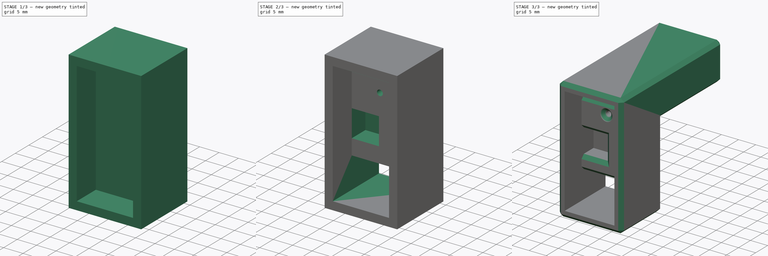
[diagram: build sequence overview — one tinted view per stage of 3, left to right]
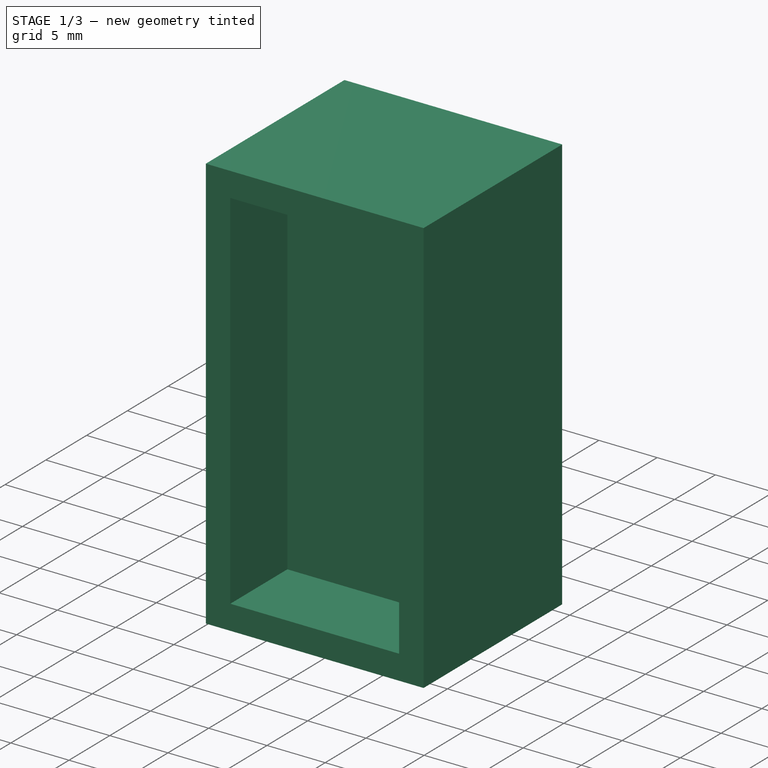
[diagram: stage 1 of 3 — iso view after this stage's code; geometry added in this stage tinted green]
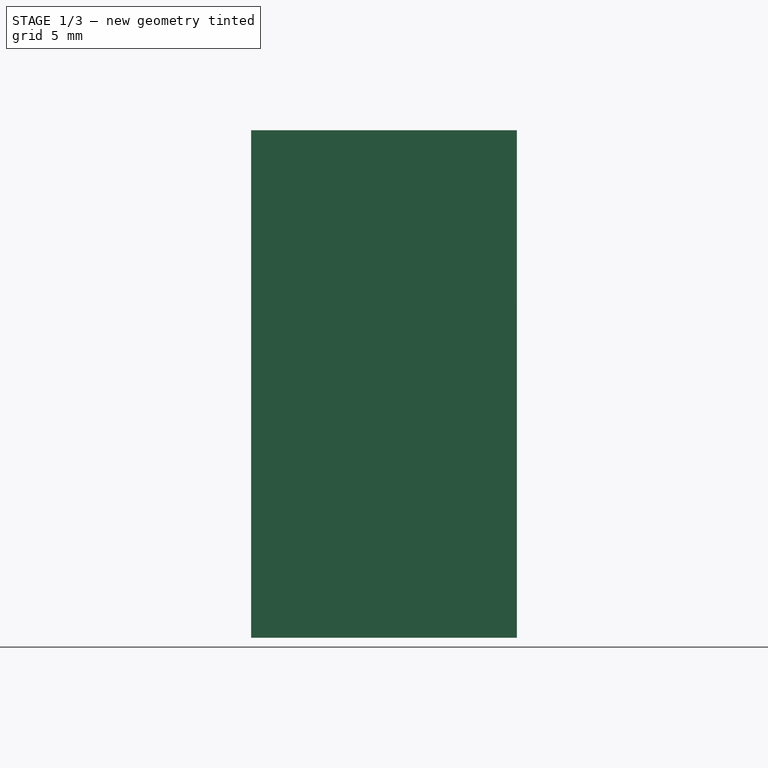
[diagram: stage 1 of 3 — front view after this stage's code; geometry added in this stage tinted green]
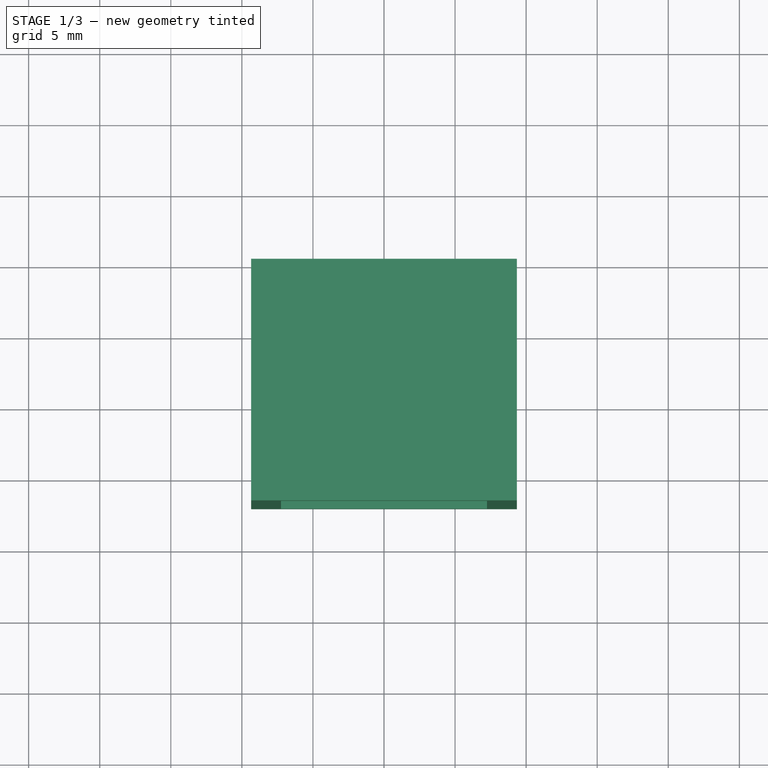
[diagram: stage 1 of 3 — top view after this stage's code; geometry added in this stage tinted green]
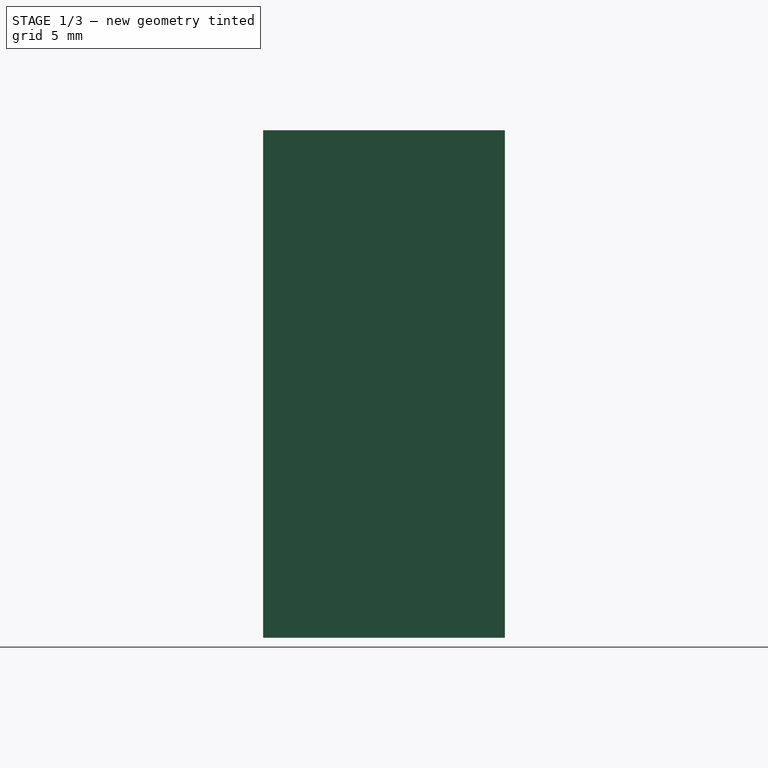
[diagram: stage 1 of 3 — right view after this stage's code; geometry added in this stage tinted green]
FCSTD DOCUMENT  (FreeCAD 0.20R24436 (Git))
Label: EMH_eHZ_readhead
License: All rights reserved
LicenseURL: http://en.wikipedia.org/wiki/All_rights_reserved
objects: Sketcher::SketchObject×5, PartDesign::Pocket×3, PartDesign::Pad×2, PartDesign::Chamfer×1, PartDesign::Body×1, App::Part×1
note: 18 computed .brp shape members not serialized (recipe doc carries the construction recipe); baked Part::Feature solids carry a one-line shape summary decoded from their .brp

FEATURE [Sketcher::SketchObject] Sketch
  FullyConstrained = true
  MapMode = 5
  Placement = pos=(0,0,0) rot=(1,0,0;1.5708rad)
  Support = -> [XZ_Plane001]
  sketch-geometry (9):
    g0: Circle CenterX=0 CenterY=0 CenterZ=0 NormalX=0 NormalY=0 NormalZ=1 AngleXU=0 Radius=2.5
    g1: LineSegment StartX=-9.35 StartY=-6.1 StartZ=0 EndX=9.35 EndY=-6.1 EndZ=0
    g2: LineSegment StartX=9.35 StartY=-6.1 StartZ=0 EndX=9.35 EndY=29.6 EndZ=0
    g3: LineSegment StartX=9.35 StartY=29.6 StartZ=0 EndX=-9.35 EndY=29.6 EndZ=0
    g4: LineSegment StartX=-9.35 StartY=29.6 StartZ=0 EndX=-9.35 EndY=-6.1 EndZ=0
    g5: LineSegment StartX=-7.25 StartY=-4 StartZ=0 EndX=7.25 EndY=-4 EndZ=0
    g6: LineSegment StartX=7.25 StartY=-4 StartZ=0 EndX=7.25 EndY=27.5 EndZ=0
    g7: LineSegment StartX=7.25 StartY=27.5 StartZ=0 EndX=-7.25 EndY=27.5 EndZ=0
    g8: LineSegment StartX=-7.25 StartY=27.5 StartZ=0 EndX=-7.25 EndY=-4 EndZ=0
  constraints (24):
    c: Coincident(g0,g-1)
    c: Radius(g0) = 2.5
    c: Coincident(g1,g2)
    c: Coincident(g2,g3)
    c: Coincident(g3,g4)
    c: Coincident(g4,g1)
    c: Horizontal(g3)
    c: Vertical(g2)
    c: Vertical(g4)
    c: Coincident(g5,g6)
    c: Coincident(g6,g7)
    c: Coincident(g7,g8)
    c: Coincident(g8,g5)
    c: Horizontal(g7)
    c: Vertical(g6)
    c: Vertical(g8)
    c: Distance(g7) = 14.5
    c: DistanceY(g6,g6) = 31.5
    c: Symmetric(g5,g5,g-2)
    c: Symmetric(g1,g1,g-2)
    c: DistanceX(g1,g5) = 2.1
    c: DistanceY(g1,g5) = 2.1
    c: DistanceY(g7,g3) = 2.1
    c: DistanceY(g5,g-1) = 4
FEATURE [PartDesign::Pad] Pad
  Direction = (0,-1,2e-16)
  Length = 17
  Length2 = 100
  Placement = pos=(0,0,0) rot=(1,0,0;1.5708rad)
  Profile = -> Sketch
  Refine = true
  Type = 0
FEATURE [Sketcher::SketchObject] Sketch001
  FullyConstrained = true
  MapMode = 5
  Placement = pos=(0,-17,1.13e-14) rot=(1,0,0;1.5708rad)
  Support = -> [Pad]
  sketch-geometry (4):
    g0: LineSegment StartX=-7.25 StartY=-4 StartZ=0 EndX=7.25 EndY=-4 EndZ=0
    g1: LineSegment StartX=7.25 StartY=-4 StartZ=0 EndX=7.25 EndY=27.5 EndZ=0
    g2: LineSegment StartX=7.25 StartY=27.5 StartZ=0 EndX=-7.25 EndY=27.5 EndZ=0
    g3: LineSegment StartX=-7.25 StartY=27.5 StartZ=0 EndX=-7.25 EndY=-4 EndZ=0
  constraints (11):
    c: Coincident(g0,g1)
    c: Coincident(g1,g2)
    c: Coincident(g2,g3)
    c: Coincident(g3,g0)
    c: Horizontal(g2)
    c: Vertical(g1)
    c: Vertical(g3)
    c: Symmetric(g0,g0,g-2)
    c: Distance(g0) = 14.5
    c: Distance(g1) = 31.5
    c: DistanceY(g0,g-1) = 4
FEATURE [PartDesign::Pocket] Pocket
  BaseFeature = -> Pad
  Length = 7
  Length2 = 100
  Placement = pos=(0,0,0) rot=(1,0,0;1.5708rad)
  Profile = -> Sketch001
  Refine = true
  Type = 0
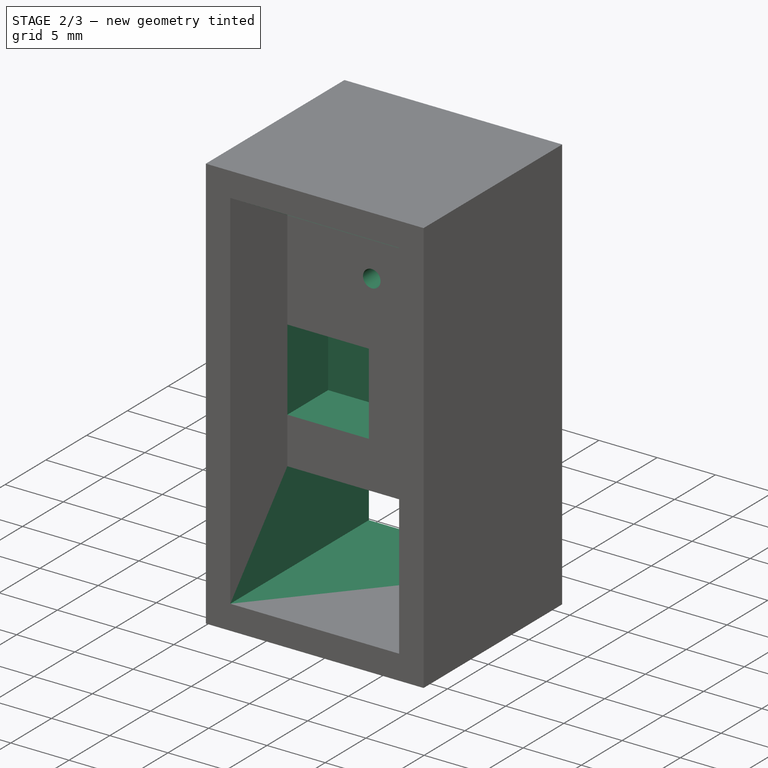
[diagram: stage 2 of 3 — iso view after this stage's code; geometry added in this stage tinted green]
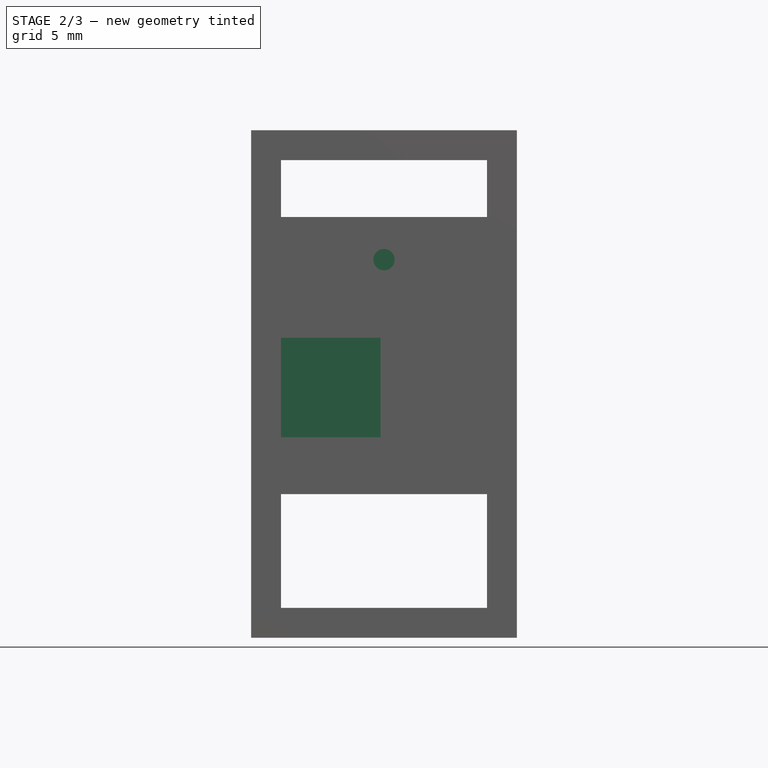
[diagram: stage 2 of 3 — front view after this stage's code; geometry added in this stage tinted green]
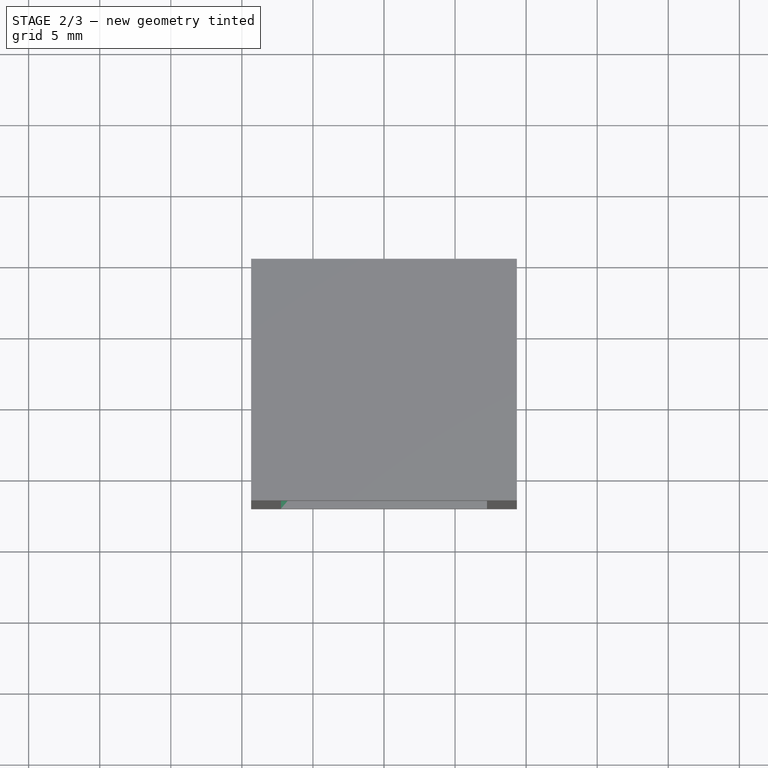
[diagram: stage 2 of 3 — top view after this stage's code; geometry added in this stage tinted green]
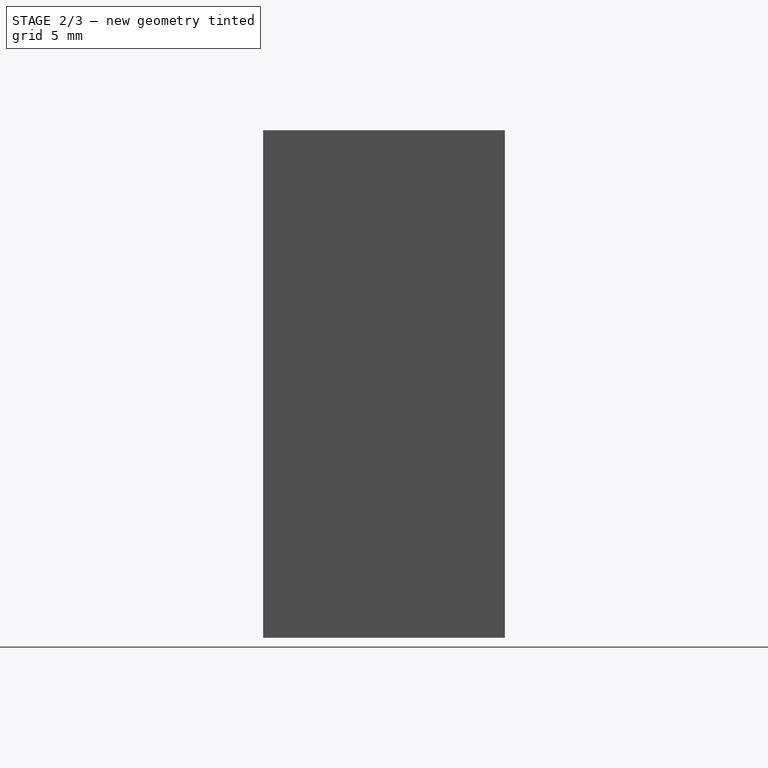
[diagram: stage 2 of 3 — right view after this stage's code; geometry added in this stage tinted green]
FEATURE [Sketcher::SketchObject] Sketch002
  ExternalGeometry = -> [Pocket]
  FullyConstrained = true
  MapMode = 5
  Placement = pos=(0,-10,1.23e-14) rot=(1,0,0;1.5708rad)
  Support = -> [Pocket]
  sketch-geometry (8):
    g0: LineSegment StartX=-7.25 StartY=-4 StartZ=0 EndX=7.25 EndY=-4 EndZ=0
    g1: LineSegment StartX=7.25 StartY=-4 StartZ=0 EndX=7.25 EndY=4 EndZ=0
    g2: LineSegment StartX=7.25 StartY=4 StartZ=0 EndX=-7.25 EndY=4 EndZ=0
    g3: LineSegment StartX=-7.25 StartY=4 StartZ=0 EndX=-7.25 EndY=-4 EndZ=0
    g4: LineSegment StartX=-7.25 StartY=27.5 StartZ=0 EndX=7.25 EndY=27.5 EndZ=0
    g5: LineSegment StartX=7.25 StartY=27.5 StartZ=0 EndX=7.25 EndY=23.5 EndZ=0
    g6: LineSegment StartX=7.25 StartY=23.5 StartZ=0 EndX=-7.25 EndY=23.5 EndZ=0
    g7: LineSegment StartX=-7.25 StartY=23.5 StartZ=0 EndX=-7.25 EndY=27.5 EndZ=0
  constraints (19):
    c: Coincident(g0,g1)
    c: Coincident(g1,g2)
    c: Coincident(g2,g3)
    c: Coincident(g3,g0)
    c: Horizontal(g2)
    c: Vertical(g3)
    c: Coincident(g0,g-3)
    c: Coincident(g4,g5)
    c: Coincident(g5,g6)
    c: Coincident(g6,g7)
    c: Coincident(g7,g4)
    c: Horizontal(g6)
    c: Vertical(g5)
    c: Vertical(g7)
    c: Coincident(g4,g-4)
    c: Coincident(g4,g-4)
    c: Coincident(g0,g-3)
    c: Symmetric(g1,g0,g-1)
    c: DistanceY(g5,g5) = 4
FEATURE [PartDesign::Pocket] Pocket001
  BaseFeature = -> Pocket
  Length = 5
  Length2 = 100
  Placement = pos=(0,0,0) rot=(1,0,0;1.5708rad)
  Profile = -> Sketch002
  Refine = true
  Type = 1
FEATURE [Sketcher::SketchObject] Sketch003
  ExternalGeometry = -> [Pocket001]
  FullyConstrained = true
  MapMode = 5
  Placement = pos=(0,-10,1.68e-14) rot=(1,0,0;1.5708rad)
  Support = -> [Pocket001]
  sketch-geometry (5):
    g0: Circle CenterX=0 CenterY=20.5 CenterZ=0 NormalX=0 NormalY=0 NormalZ=1 AngleXU=0 Radius=0.75
    g1: LineSegment StartX=-7.25 StartY=15 StartZ=0 EndX=-0.25 EndY=15 EndZ=0
    g2: LineSegment StartX=-0.25 StartY=15 StartZ=0 EndX=-0.25 EndY=8 EndZ=0
    g3: LineSegment StartX=-0.25 StartY=8 StartZ=0 EndX=-7.25 EndY=8 EndZ=0
    g4: LineSegment StartX=-7.25 StartY=8 StartZ=0 EndX=-7.25 EndY=15 EndZ=0
  constraints (15):
    c: PointOnObject(g0,g-2)
    c: Coincident(g1,g2)
    c: Coincident(g2,g3)
    c: Coincident(g3,g4)
    c: Coincident(g4,g1)
    c: Horizontal(g1)
    c: Horizontal(g3)
    c: Vertical(g2)
    c: Vertical(g4)
    c: PointOnObject(g1,g-3)
    c: Diameter(g0) = 1.5
    c: DistanceY(g0,g-5) = 7
    c: Equal(g2,g1)
    c: Distance(g1) = 7
    c: DistanceY(g3,g-5) = 19.5
FEATURE [PartDesign::Pocket] Pocket002
  BaseFeature = -> Pocket001
  Length = 5
  Length2 = 100
  Placement = pos=(0,0,0) rot=(1,0,0;1.5708rad)
  Profile = -> Sketch003
  Refine = true
  Type = 0
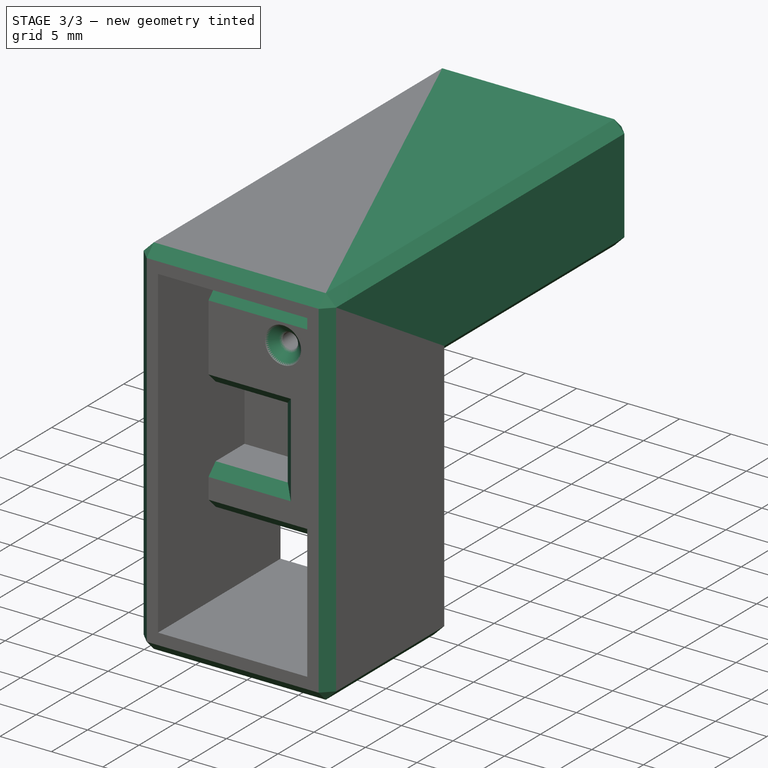
[diagram: stage 3 of 3 — iso view after this stage's code; geometry added in this stage tinted green]
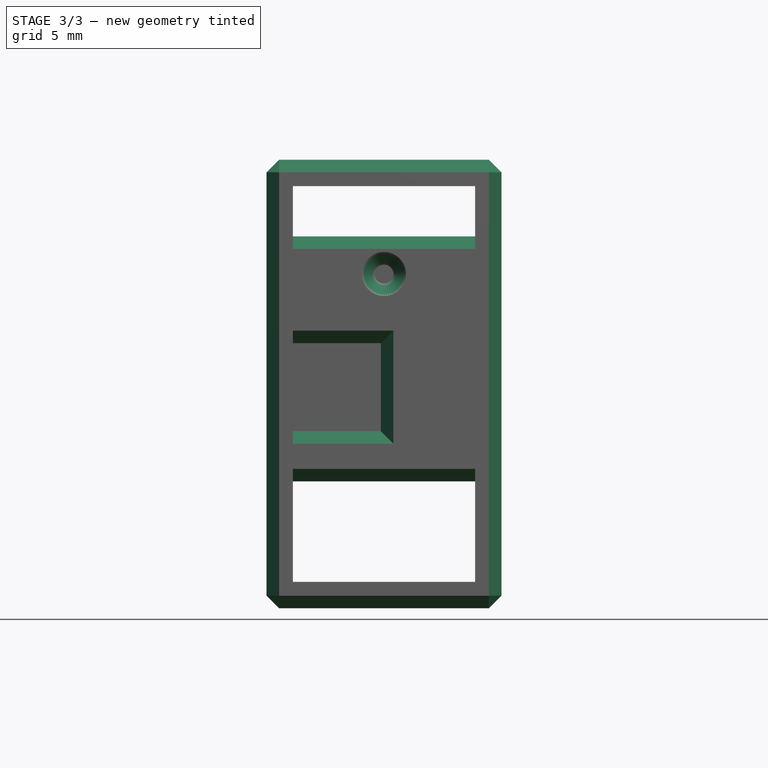
[diagram: stage 3 of 3 — front view after this stage's code; geometry added in this stage tinted green]
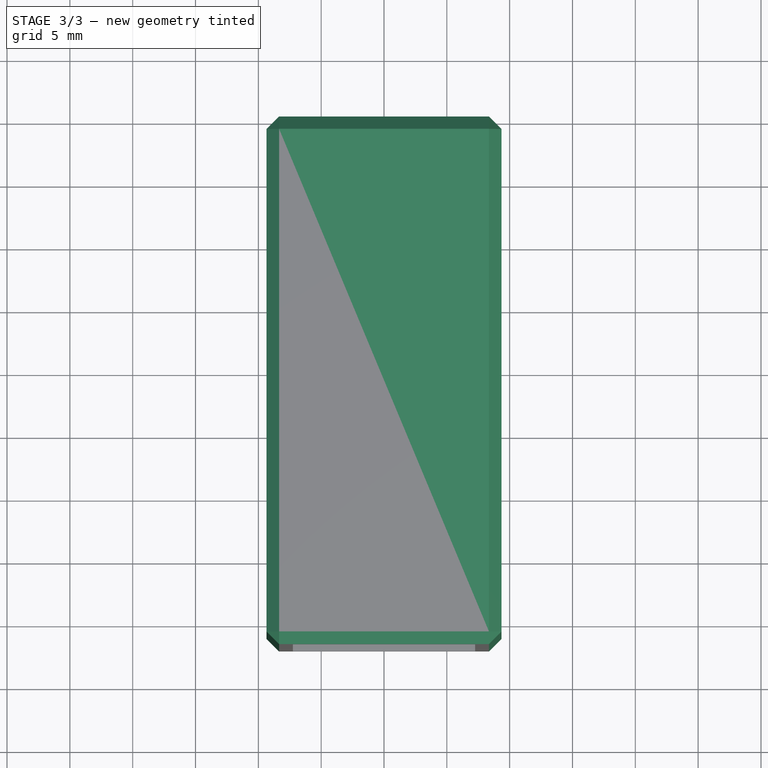
[diagram: stage 3 of 3 — top view after this stage's code; geometry added in this stage tinted green]
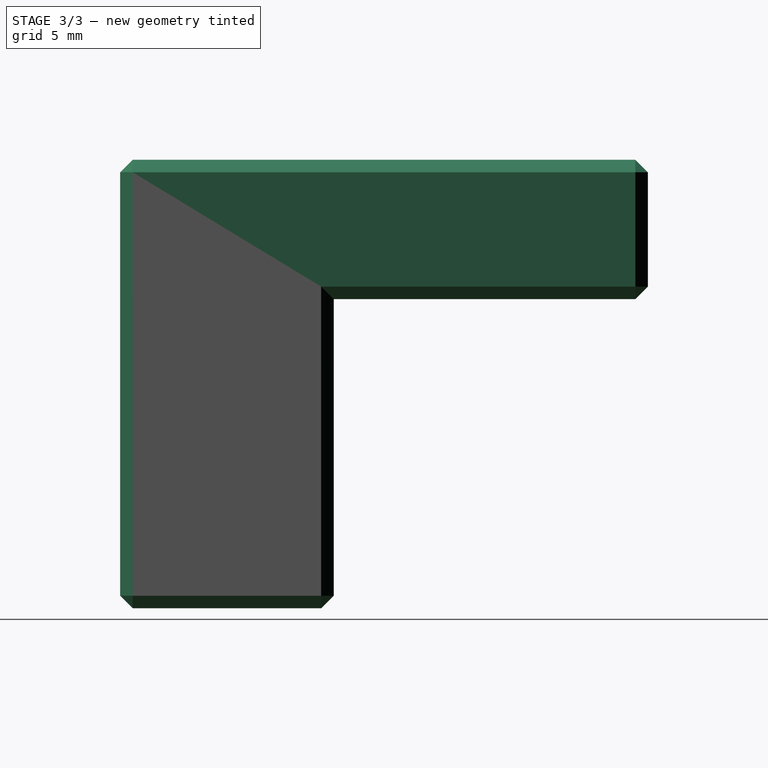
[diagram: stage 3 of 3 — right view after this stage's code; geometry added in this stage tinted green]
FEATURE [Sketcher::SketchObject] Sketch004
  ExternalGeometry = -> [Pocket002]
  FullyConstrained = true
  MapMode = 5
  Placement = pos=(0,0,0) rot=(-1,0,0;1.5708rad)
  Support = -> [Pocket002]
  sketch-geometry (8):
    g0: LineSegment StartX=9.35 StartY=-29.6 StartZ=0 EndX=-9.35 EndY=-29.6 EndZ=0
    g1: LineSegment StartX=-9.35 StartY=-29.6 StartZ=0 EndX=-9.35 EndY=-18.5 EndZ=0
    g2: LineSegment StartX=-9.35 StartY=-18.5 StartZ=0 EndX=9.35 EndY=-18.5 EndZ=0
    g3: LineSegment StartX=9.35 StartY=-18.5 StartZ=0 EndX=9.35 EndY=-29.6 EndZ=0
    g4: LineSegment StartX=-7.25 StartY=-23.5 StartZ=0 EndX=7.25 EndY=-23.5 EndZ=0
    g5: LineSegment StartX=7.25 StartY=-23.5 StartZ=0 EndX=7.25 EndY=-27.5 EndZ=0
    g6: LineSegment StartX=7.25 StartY=-27.5 StartZ=0 EndX=-7.25 EndY=-27.5 EndZ=0
    g7: LineSegment StartX=-7.25 StartY=-27.5 StartZ=0 EndX=-7.25 EndY=-23.5 EndZ=0
  constraints (21):
    c: Coincident(g0,g1)
    c: Coincident(g1,g2)
    c: Coincident(g2,g3)
    c: Coincident(g3,g0)
    c: Horizontal(g0)
    c: Horizontal(g2)
    c: Vertical(g1)
    c: Vertical(g3)
    c: Coincident(g0,g-6)
    c: PointOnObject(g1,g-5)
    c: DistanceY(g1,g-1) = 18.5
    c: Coincident(g4,g5)
    c: Coincident(g5,g6)
    c: Coincident(g6,g7)
    c: Coincident(g7,g4)
    c: Horizontal(g4)
    c: Horizontal(g6)
    c: Vertical(g5)
    c: Vertical(g7)
    c: Coincident(g4,g-10)
    c: Coincident(g5,g-9)
FEATURE [PartDesign::Pad] Pad001
  BaseFeature = -> Pocket002
  Direction = (0,1,-2.1e-15)
  Length = 25
  Length2 = 100
  Placement = pos=(0,0,0) rot=(1,0,0;1.5708rad)
  Profile = -> Sketch004
  Refine = true
  Type = 0
FEATURE [PartDesign::Chamfer] Chamfer
  Angle = 45
  Base = -> Pad001 [Edge14,Edge13,Edge53,Edge52,Edge12,Edge4,Edge2,Edge1,Edge3,Edge7,Edge20,Edge29,Edge28,Edge19,Edge5,Edge21,Edge27,Edge34,Edge24,Edge41,Edge39,Edge38,Edge37]
  BaseFeature = -> Pad001
  ChamferType = 0
  FlipDirection = false
  Placement = pos=(0,0,0) rot=(1,0,0;1.5708rad)
  Refine = true
  Size = 1
  Size2 = 1
  SupportTransform = false
FEATURE [PartDesign::Body] Body
  Group = -> [Sketch,Pad,Sketch001,Pocket,Sketch002,Pocket001,Sketch003,Pocket002,Sketch004,Pad001,Chamfer]
  Origin = -> Origin001
  Tip = -> Chamfer
FEATURE [App::Part] Part
  Group = -> [Body]
  Origin = -> Origin
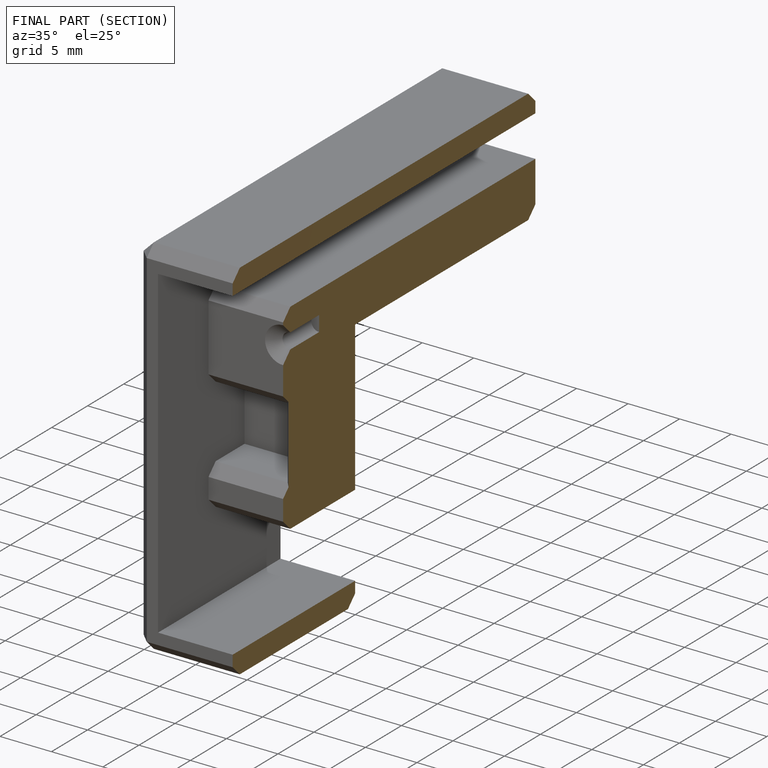
[diagram: finished part — half-section view (interior)]
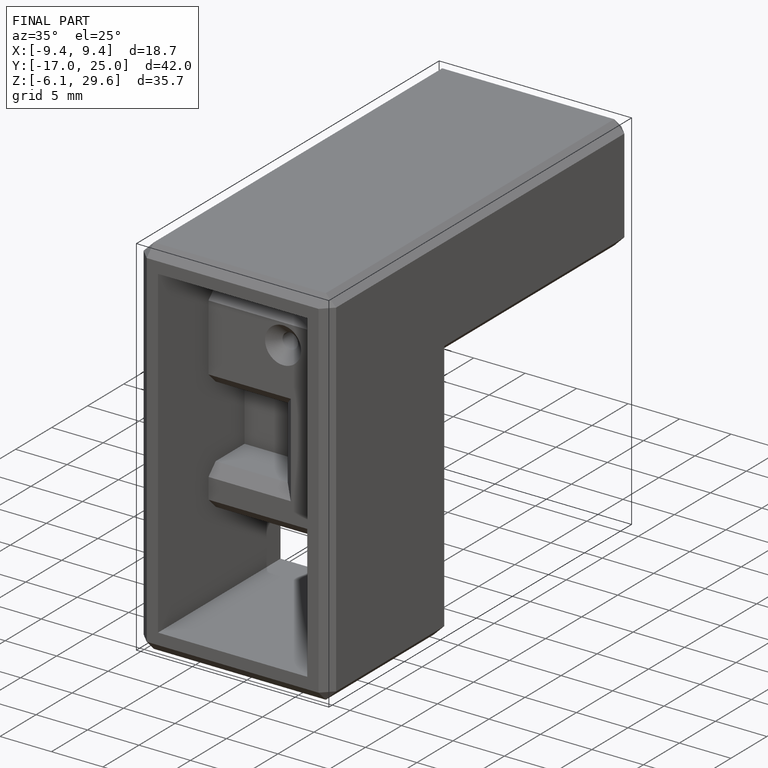
[diagram: finished part — iso view with bounding-box wireframe]
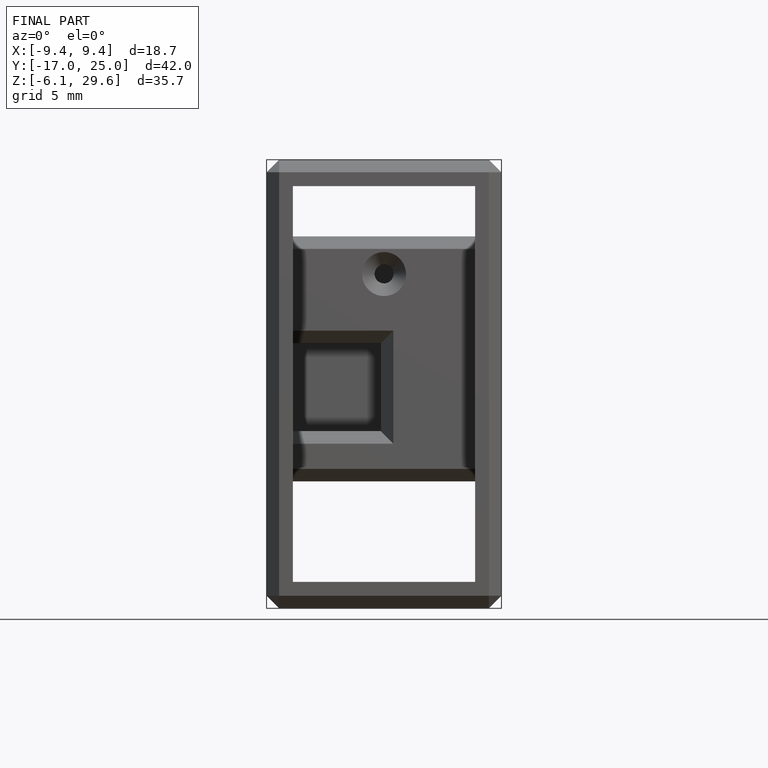
[diagram: finished part — front view with bounding-box wireframe]
